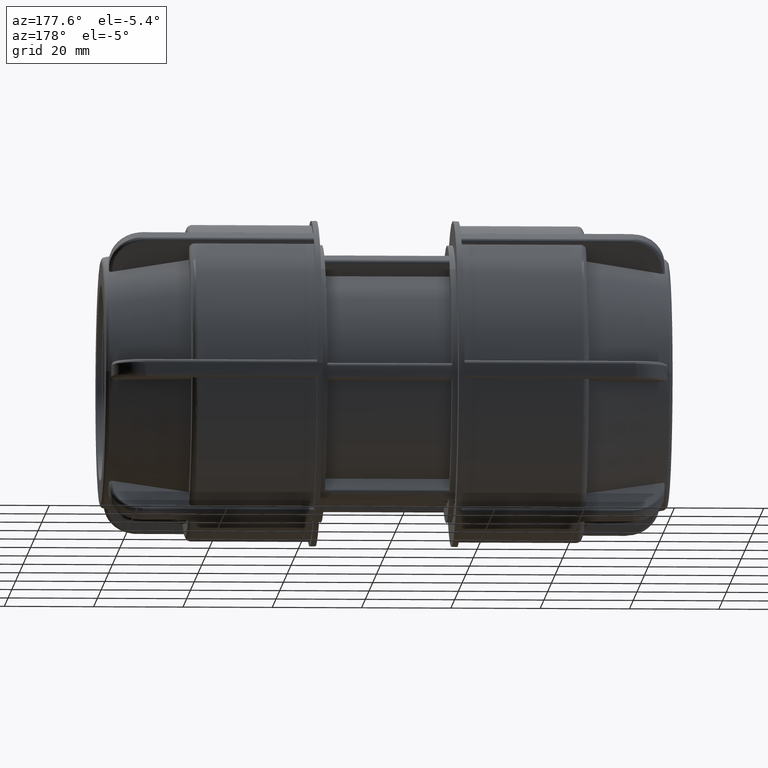
[diagram: clean part render]
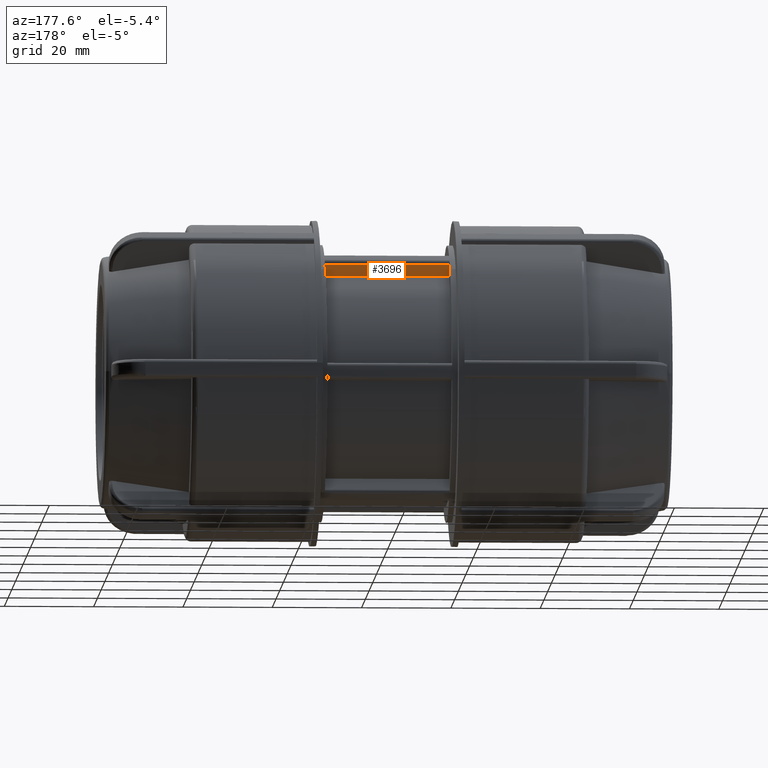
[diagram: same view with one face highlighted and labeled with its STEP entity id]
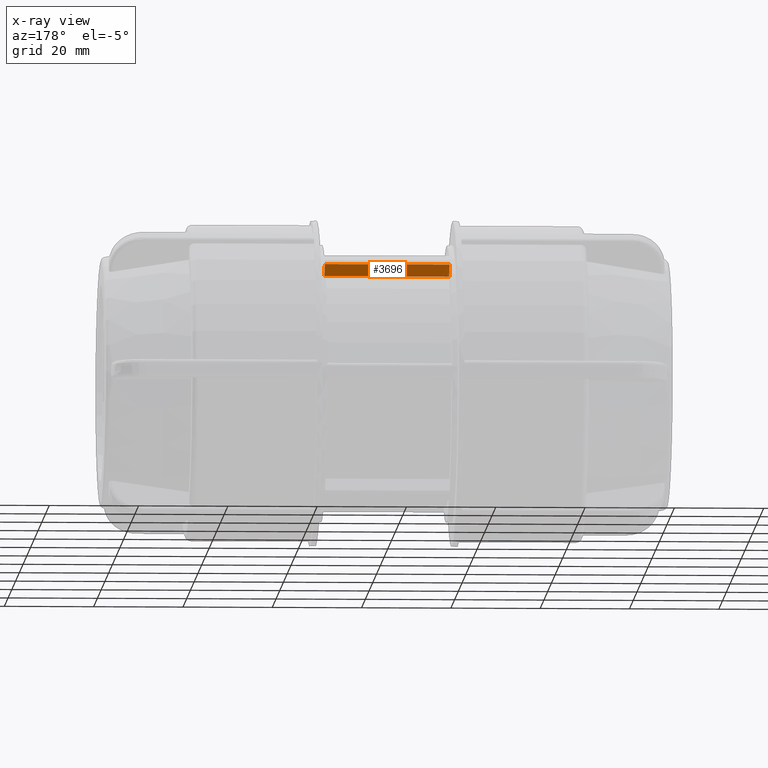
[diagram: x-ray of the same camera — body ghosted, the highlighted face saturated]
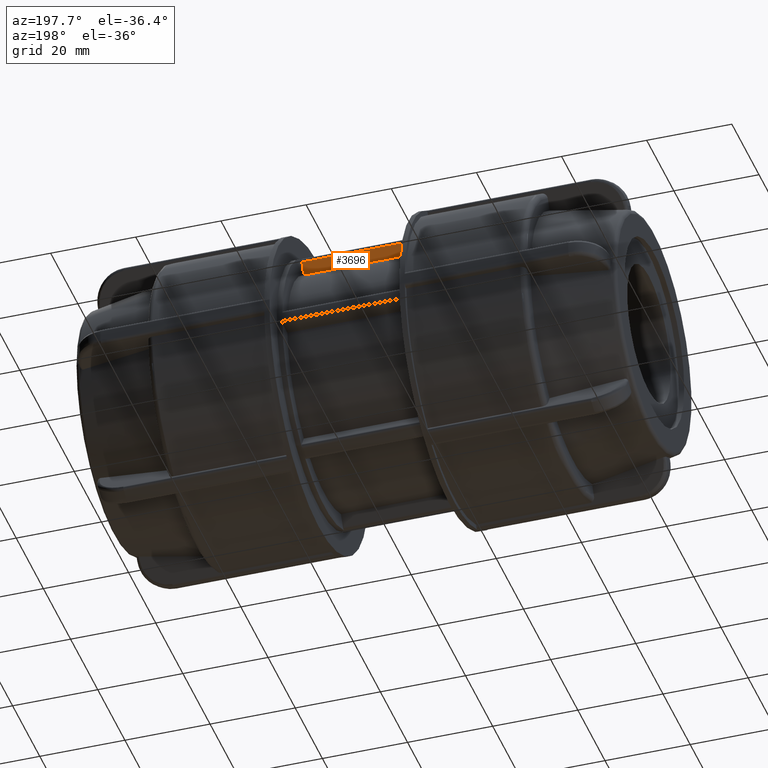
[diagram: same view with one face highlighted and labeled with its STEP entity id]
A machine part, auxiliary view. The second image highlights one B-rep face of the part: STEP entity #3696.
The next image is the same camera in x-ray: the body ghosted, the highlighted face saturated — about 0% of this face is hidden behind the body in this view.
A second angle (auxiliary view) of the same face is appended — the face is thin or edge-on in the first view.
In plain terms, the highlighted planar face has unit normal (-0, 0.866, -0.5).
Its self-contained STEP definition (entity closure, byte-faithful):
#214=PLANE('',#3948);
#310=FACE_OUTER_BOUND('',#547,.T.);
#547=EDGE_LOOP('',(#2483,#2484,#2485,#2486));
#808=LINE('',#5549,#1036);
#809=LINE('',#5553,#1037);
#810=LINE('',#5555,#1038);
#811=LINE('',#5556,#1039);
#1036=VECTOR('',#4430,27.94);
#1037=VECTOR('',#4435,2.9611054524087);
#1038=VECTOR('',#4436,27.94);
#1039=VECTOR('',#4437,2.9611054524087);
#1513=VERTEX_POINT('',#5546);
#1514=VERTEX_POINT('',#5548);
#1515=VERTEX_POINT('',#5552);
#1516=VERTEX_POINT('',#5554);
#1895=EDGE_CURVE('',#1513,#1514,#808,.T.);
#1897=EDGE_CURVE('',#1515,#1513,#809,.T.);
#1898=EDGE_CURVE('',#1516,#1515,#810,.T.);
#1899=EDGE_CURVE('',#1514,#1516,#811,.T.);
#2483=ORIENTED_EDGE('',*,*,#1895,.F.);
#2484=ORIENTED_EDGE('',*,*,#1897,.F.);
#2485=ORIENTED_EDGE('',*,*,#1898,.F.);
#2486=ORIENTED_EDGE('',*,*,#1899,.F.);
#3696=ADVANCED_FACE('',(#310),#214,.T.);
#3948=AXIS2_PLACEMENT_3D('',#5551,#4433,#4434);
#4430=DIRECTION('',(-1.,-3.38177591431136E-16,2.0061254846503E-17));
#4433=DIRECTION('center_axis',(-3.0290101259325E-16,0.866025403784438,-0.5));
#4434=DIRECTION('ref_axis',(1.77635683940025E-16,-0.5,-0.866025403784438));
#4435=DIRECTION('',(-1.53080849893419E-16,0.5,0.866025403784438));
#4436=DIRECTION('',(1.,3.06161699786838E-16,0.));
#4437=DIRECTION('',(1.53080849893419E-16,-0.5,-0.866025403784438));
#5546=CARTESIAN_POINT('',(13.97,16.7180985498359,25.3065960942592));
#5548=CARTESIAN_POINT('',(-13.97,16.7180985498359,25.3065960942592));
#5549=CARTESIAN_POINT('',(-14.605,16.7180985498358,25.3065960942592));
#5551=CARTESIAN_POINT('Origin',(13.97,17.066134869892,25.9094126834758));
#5552=CARTESIAN_POINT('',(13.97,15.2375458236315,22.7422035491887));
#5553=CARTESIAN_POINT('',(13.97,13.2014406158993,19.215565879841));
#5554=CARTESIAN_POINT('',(-13.97,15.2375458236315,22.7422035491887));
#5555=CARTESIAN_POINT('',(6.98500000000001,15.2375458236315,22.7422035491887));
#5556=CARTESIAN_POINT('',(-13.97,13.2014406158993,19.215565879841));